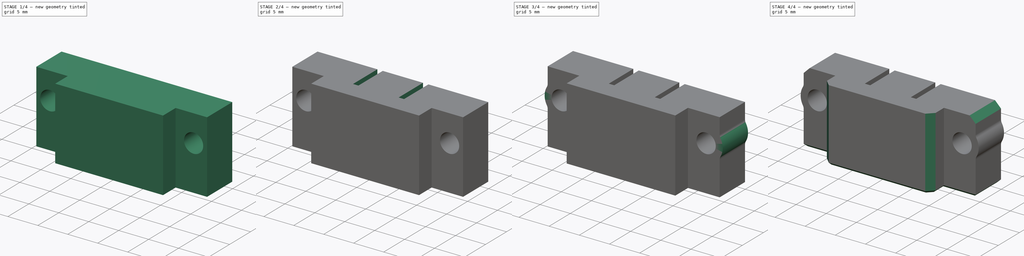
[diagram: build sequence overview — one tinted view per stage of 4, left to right]
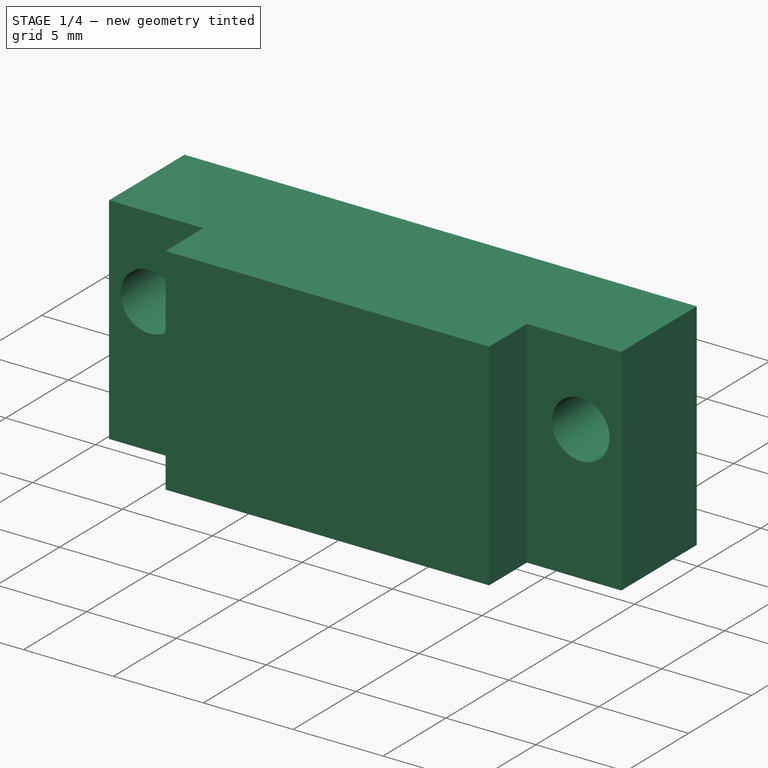
[diagram: stage 1 of 4 — iso view after this stage's code; geometry added in this stage tinted green]
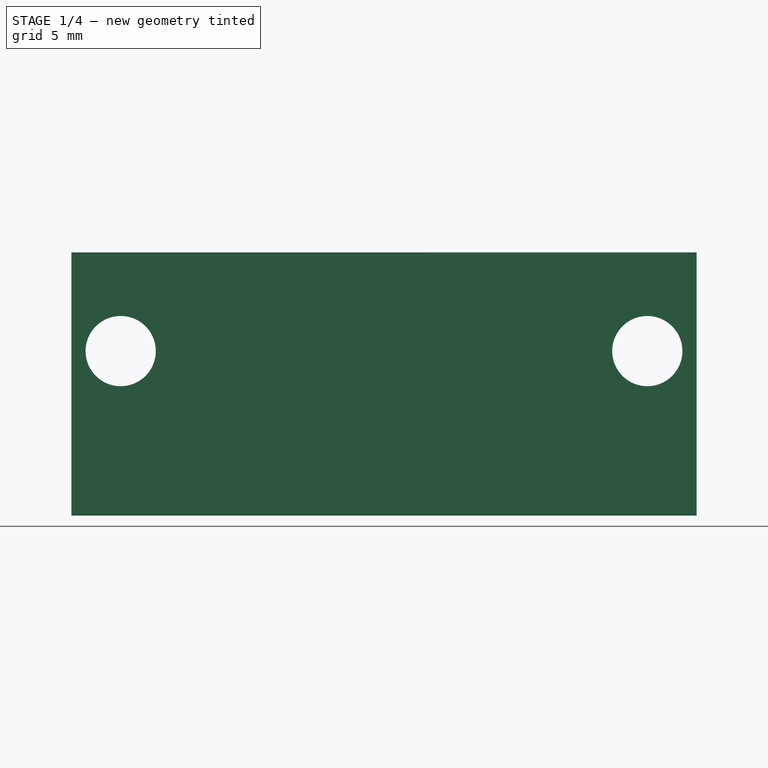
[diagram: stage 1 of 4 — front view after this stage's code; geometry added in this stage tinted green]
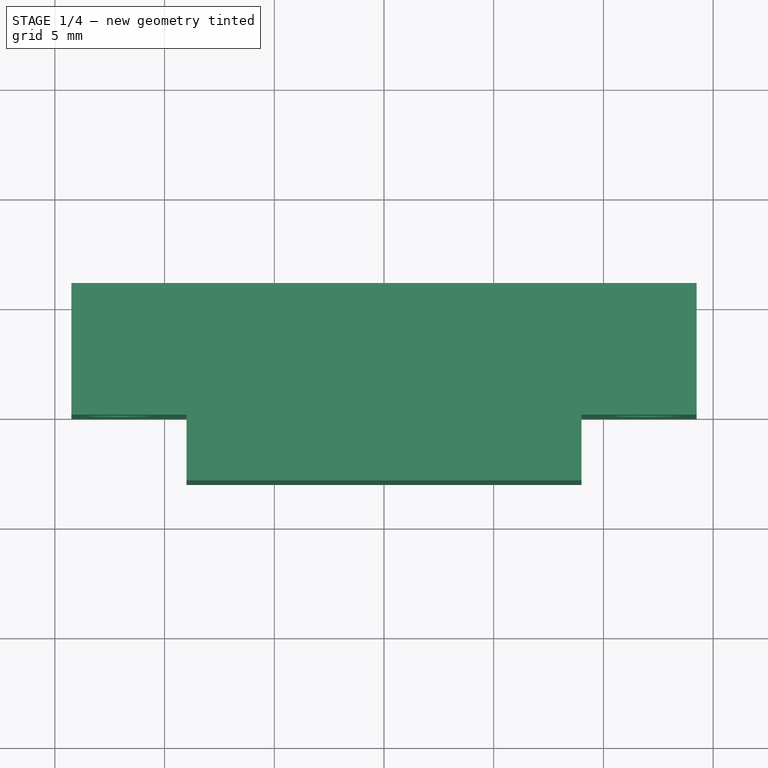
[diagram: stage 1 of 4 — top view after this stage's code; geometry added in this stage tinted green]
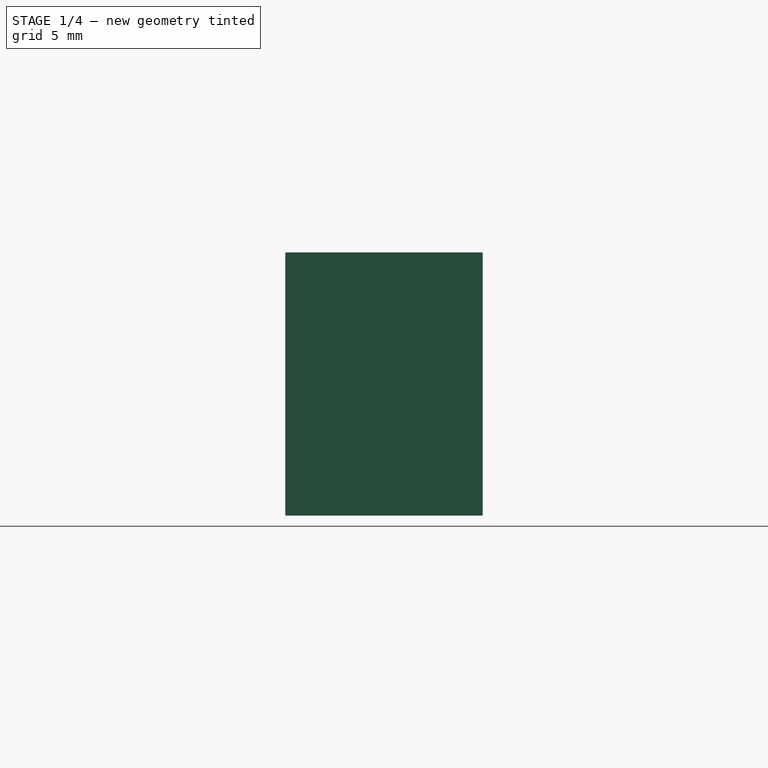
[diagram: stage 1 of 4 — right view after this stage's code; geometry added in this stage tinted green]
FCSTD DOCUMENT  (FreeCAD 2024.113R14555 (Git shallow))
Label: support-sensor
License: All rights reserved
LicenseURL: https://en.wikipedia.org/wiki/All_rights_reserved
objects: Sketcher::SketchObject×5, PartDesign::Pocket×3, PartDesign::Pad×2, PartDesign::Fillet×2, PartDesign::Chamfer×2, PartDesign::Mirrored×1, PartDesign::Body×1
note: 41 computed .brp shape members not serialized (recipe doc carries the construction recipe); baked Part::Feature solids carry a one-line shape summary decoded from their .brp

FEATURE [Sketcher::SketchObject] Sketch
  ArcFitTolerance = 1e-06
  AttachmentSupport = -> [XY_Plane]
  ExternalBSplineMaxDegree = 5
  ExternalBSplineTolerance = 0.0001
  FullyConstrained = true
  InternalTolerance = 1e-06
  InvalidShape = false
  MakeInternals = false
  MapMode = 5
  Support = -> [XY_Plane]
  TreeRank = 11
  ValidateShape = false
  sketch-geometry (8):
    g0: LineSegment StartX=-14.25 StartY=0 StartZ=0 EndX=-9 EndY=0 EndZ=0
    g1: LineSegment StartX=-9 StartY=0 StartZ=0 EndX=-9 EndY=-3 EndZ=0
    g2: LineSegment StartX=-9 StartY=-3 StartZ=0 EndX=9 EndY=-3 EndZ=0
    g3: LineSegment StartX=9 StartY=-3 StartZ=0 EndX=9 EndY=0 EndZ=0
    g4: LineSegment StartX=9 StartY=0 StartZ=0 EndX=14.25 EndY=0 EndZ=0
    g5: LineSegment StartX=14.25 StartY=0 StartZ=0 EndX=14.25 EndY=6 EndZ=0
    g6: LineSegment StartX=14.25 StartY=6 StartZ=0 EndX=-14.25 EndY=6 EndZ=0
    g7: LineSegment StartX=-14.25 StartY=6 StartZ=0 EndX=-14.25 EndY=0 EndZ=0
  constraints (22):
    c: PointOnObject(g0,g-1)
    c: PointOnObject(g0,g-1)
    c: Coincident(g0,g1)
    c: Vertical(g1)
    c: Coincident(g1,g2)
    c: Coincident(g2,g3)
    c: PointOnObject(g3,g-1)
    c: Vertical(g3)
    c: Coincident(g3,g4)
    c: PointOnObject(g4,g-1)
    c: Coincident(g4,g5)
    c: Vertical(g5)
    c: Coincident(g5,g6)
    c: Coincident(g6,g7)
    c: Coincident(g7,g0)
    c: Vertical(g7)
    c: Symmetric(g2,g1,g-2)
    c: Symmetric(g5,g6,g-2)
    c: DistanceY(g3,g3) = 3
    c: DistanceX(g6,g6) = 28.5
    c: DistanceX(g2,g2) = 18
    c: DistanceY(g5,g5) = 6
FEATURE [PartDesign::Pad] Pad
  AddSubType = 0
  AlongSketchNormal = false
  AutoTaperInnerAngle = true
  CheckUpToFaceLimits = true
  ClaimChildren = false
  Direction = (0,0,1)
  Fit = 0
  FitJoin = 0
  InnerFit = 0
  InnerFitJoin = 0
  InvalidShape = false
  Length = 12
  Length2 = 10
  Linearize = true
  NewSolid = false
  Profile = -> Sketch
  ReferenceAxis = -> Sketch [N_Axis]
  Refine = true
  Suppress = false
  TaperInnerAngle = 0
  TaperInnerAngleRev = 0
  TreeRank = 12
  Type = 0
  ValidateShape = true
  _ProfileBasedVersion = 1
FEATURE [Sketcher::SketchObject] Sketch001
  ArcFitTolerance = 1e-06
  AttachmentSupport = -> [XZ_Plane]
  ExternalBSplineMaxDegree = 5
  ExternalBSplineTolerance = 0.0001
  FullyConstrained = true
  InternalTolerance = 1e-06
  InvalidShape = false
  MakeInternals = false
  MapMode = 5
  Placement = pos=(0,0,0) rot=(1,0,0;1.5708rad)
  Support = -> [XZ_Plane]
  TreeRank = 13
  ValidateShape = false
  sketch-geometry (2):
    g0: Circle CenterX=-12 CenterY=7.5 CenterZ=0 NormalX=0 NormalY=0 NormalZ=1 AngleXU=0 Radius=1.6
    g1: Circle CenterX=12 CenterY=7.5 CenterZ=0 NormalX=0 NormalY=0 NormalZ=1 AngleXU=0 Radius=1.6
  constraints (5):
    c: Symmetric(g1,g0,g-2)
    c: Equal(g1,g0)
    c: Diameter(g1) = 3.2
    c: DistanceX(g0,g1) = 24
    c: DistanceY(g-1,g1) = 7.5
FEATURE [PartDesign::Pocket] Pocket
  AddSubType = 1
  AlongSketchNormal = false
  AutoTaperInnerAngle = true
  BaseFeature = -> Pad
  CheckUpToFaceLimits = true
  ClaimChildren = false
  Direction = (0,1,-2e-16)
  Fit = 0
  FitJoin = 0
  InnerFit = 0
  InnerFitJoin = 0
  InvalidShape = false
  Length = 5
  Length2 = 10
  Linearize = true
  NewSolid = false
  Profile = -> Sketch001
  ReferenceAxis = -> Sketch001 [N_Axis]
  Refine = true
  Suppress = false
  TaperInnerAngle = 0
  TaperInnerAngleRev = 0
  TreeRank = 14
  Type = 1
  ValidateShape = true
  _ProfileBasedVersion = 1
  _Version = 1
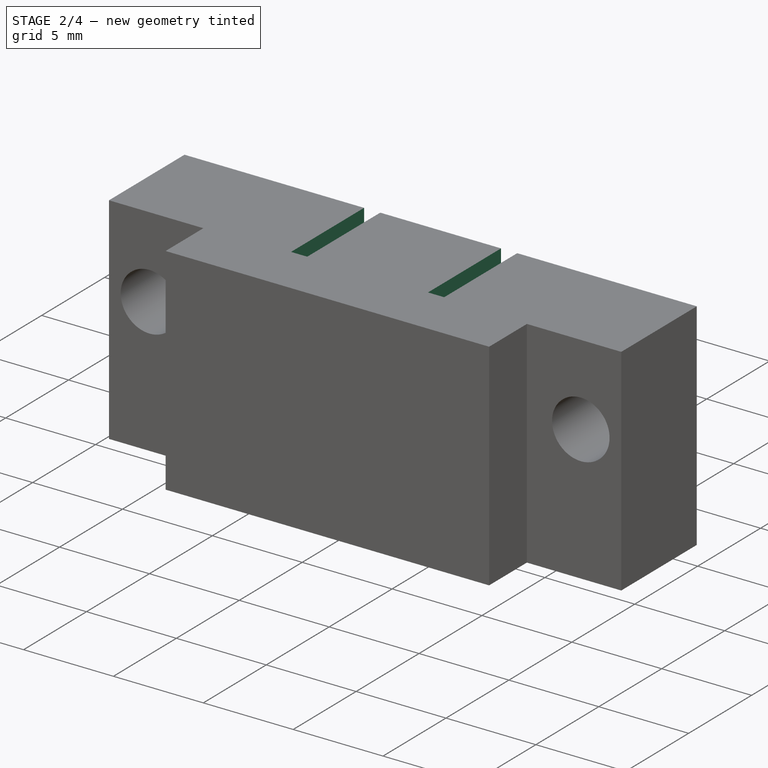
[diagram: stage 2 of 4 — iso view after this stage's code; geometry added in this stage tinted green]
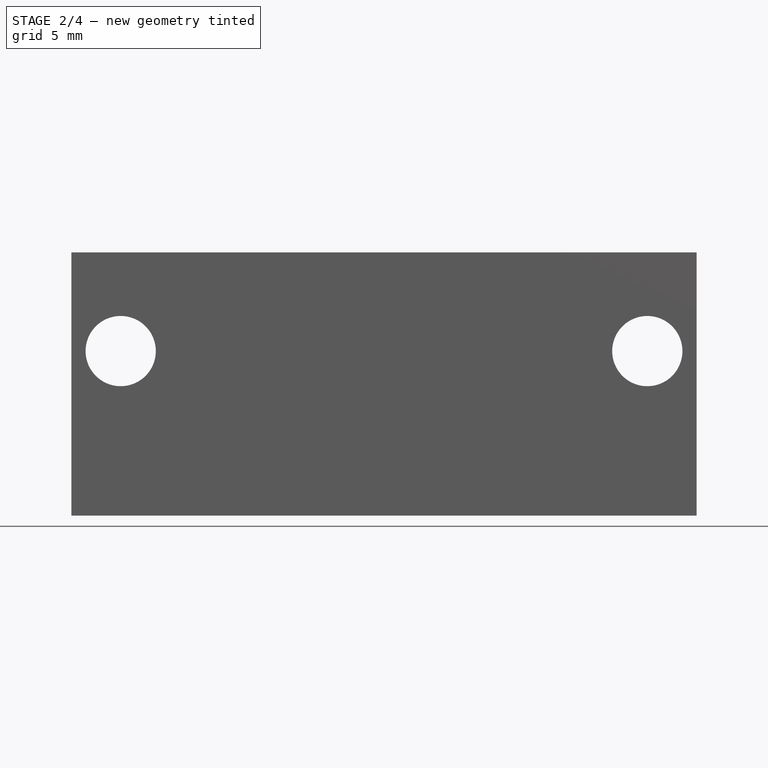
[diagram: stage 2 of 4 — front view after this stage's code; geometry added in this stage tinted green]
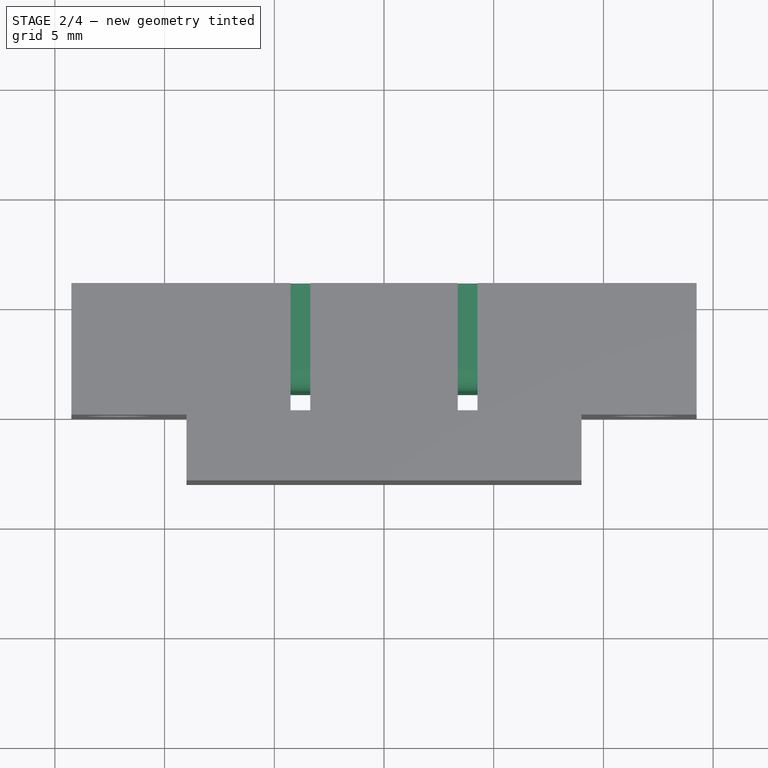
[diagram: stage 2 of 4 — top view after this stage's code; geometry added in this stage tinted green]
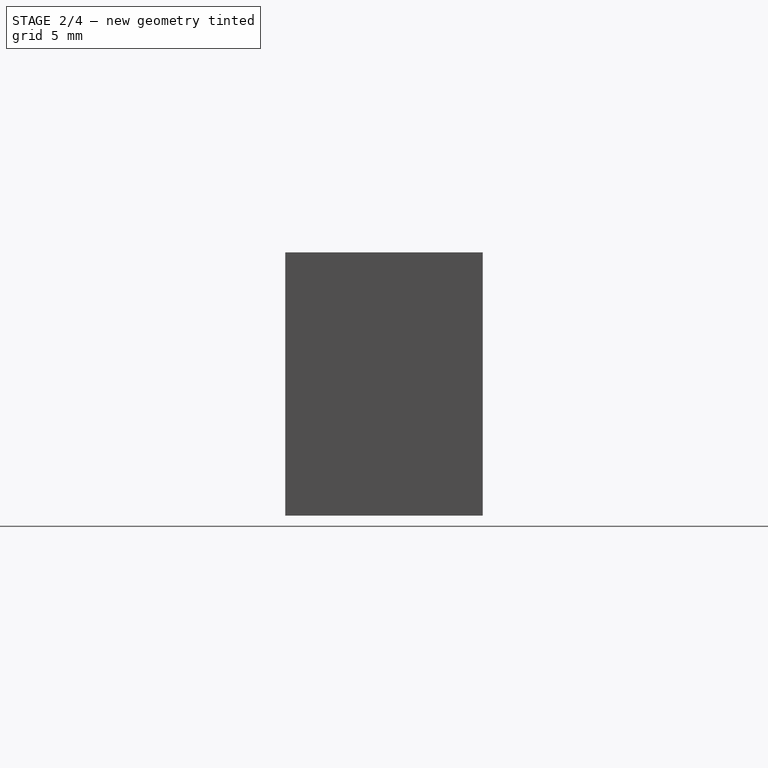
[diagram: stage 2 of 4 — right view after this stage's code; geometry added in this stage tinted green]
FEATURE [Sketcher::SketchObject] Sketch002
  ArcFitTolerance = 1e-06
  AttachmentSupport = -> [XY_Plane]
  ExternalBSplineMaxDegree = 5
  ExternalBSplineTolerance = 0.0001
  FullyConstrained = true
  InternalTolerance = 1e-06
  InvalidShape = false
  MakeInternals = false
  MapMode = 5
  Support = -> [XY_Plane]
  TreeRank = 15
  ValidateShape = false
  sketch-geometry (10):
    g0: LineSegment StartX=-4.26 StartY=1.1 StartZ=0 EndX=-4.26 EndY=0.2 EndZ=0
    g1: LineSegment StartX=-4.26 StartY=0.2 StartZ=0 EndX=-3.36 EndY=0.2 EndZ=0
    g2: LineSegment StartX=-3.36 StartY=0.2 StartZ=0 EndX=-3.36 EndY=1.1 EndZ=0
    g3: LineSegment StartX=-3.36 StartY=1.1 StartZ=0 EndX=-4.26 EndY=1.1 EndZ=0
    g4: GeomPoint [constr] X=-3.81 Y=0.65 Z=0
    g5: LineSegment StartX=3.36 StartY=1.1 StartZ=0 EndX=3.36 EndY=0.2 EndZ=0
    g6: LineSegment StartX=3.36 StartY=0.2 StartZ=0 EndX=4.26 EndY=0.2 EndZ=0
    g7: LineSegment StartX=4.26 StartY=0.2 StartZ=0 EndX=4.26 EndY=1.1 EndZ=0
    g8: LineSegment StartX=4.26 StartY=1.1 StartZ=0 EndX=3.36 EndY=1.1 EndZ=0
    g9: GeomPoint [constr] X=3.81 Y=0.65 Z=0
  constraints (25):
    c: Coincident(g0,g1)
    c: Coincident(g1,g2)
    c: Coincident(g2,g3)
    c: Coincident(g3,g0)
    c: Horizontal(g1)
    c: Horizontal(g3)
    c: Vertical(g0)
    c: Vertical(g2)
    c: Symmetric(g1,g0,g4)
    c: Coincident(g5,g6)
    c: Coincident(g6,g7)
    c: Coincident(g7,g8)
    c: Coincident(g8,g5)
    c: Horizontal(g6)
    c: Horizontal(g8)
    c: Vertical(g5)
    c: Vertical(g7)
    c: Symmetric(g6,g5,g9)
    c: Equal(g5,g2)
    c: Equal(g2,g3)
    c: Equal(g3,g8)
    c: DistanceX(g4,g9) = 7.62
    c: Symmetric(g9,g4,g-2)
    c: DistanceY(g7,g7) = 0.9
    c: DistanceY(g-1,g1) = 0.2
FEATURE [PartDesign::Pocket] Pocket001
  AddSubType = 1
  AlongSketchNormal = false
  AutoTaperInnerAngle = true
  BaseFeature = -> Pocket
  CheckUpToFaceLimits = true
  ClaimChildren = false
  Direction = (0,0,-1)
  Fit = 0
  FitJoin = 0
  InnerFit = 0
  InnerFitJoin = 0
  InvalidShape = false
  Length = 5
  Length2 = 10
  Linearize = true
  NewSolid = false
  Profile = -> Sketch002
  ReferenceAxis = -> Sketch002 [N_Axis]
  Refine = true
  Reversed = true
  Suppress = false
  TaperInnerAngle = 0
  TaperInnerAngleRev = 0
  TreeRank = 16
  Type = 1
  ValidateShape = true
  _ProfileBasedVersion = 1
  _Version = 1
FEATURE [Sketcher::SketchObject] Sketch003
  ArcFitTolerance = 1e-06
  AttachmentSupport = -> [Pocket001]
  ExternalBSplineMaxDegree = 5
  ExternalBSplineTolerance = 0.0001
  ExternalGeometry = -> [Pocket001]
  FullyConstrained = true
  InternalTolerance = 1e-06
  InvalidShape = false
  MakeInternals = false
  MapMode = 5
  Placement = pos=(0,1.1,0) rot=(1,0,0;1.5708rad)
  Support = -> [Pocket001]
  TreeRank = 17
  ValidateShape = false
  sketch-geometry (8):
    g0: LineSegment StartX=3.36 StartY=12 StartZ=0 EndX=4.26 EndY=12 EndZ=0
    g1: LineSegment StartX=4.26 StartY=12 StartZ=0 EndX=4.26 EndY=10.5 EndZ=0
    g2: LineSegment StartX=4.26 StartY=10.5 StartZ=0 EndX=3.36 EndY=10.5 EndZ=0
    g3: LineSegment StartX=3.36 StartY=10.5 StartZ=0 EndX=3.36 EndY=12 EndZ=0
    g4: LineSegment StartX=-4.26 StartY=12 StartZ=0 EndX=-3.36 EndY=12 EndZ=0
    g5: LineSegment StartX=-3.36 StartY=12 StartZ=0 EndX=-3.36 EndY=10.5 EndZ=0
    g6: LineSegment StartX=-3.36 StartY=10.5 StartZ=0 EndX=-4.26 EndY=10.5 EndZ=0
    g7: LineSegment StartX=-4.26 StartY=10.5 StartZ=0 EndX=-4.26 EndY=12 EndZ=0
  constraints (21):
    c: Coincident(g0,g1)
    c: Coincident(g1,g2)
    c: Coincident(g2,g3)
    c: Coincident(g3,g0)
    c: Horizontal(g0)
    c: Horizontal(g2)
    c: Vertical(g1)
    c: Vertical(g3)
    c: Coincident(g0,g-3)
    c: PointOnObject(g1,g-4)
    c: Coincident(g4,g5)
    c: Coincident(g5,g6)
    c: Coincident(g6,g7)
    c: Coincident(g7,g4)
    c: Horizontal(g4)
    c: Horizontal(g6)
    c: Vertical(g5)
    c: Vertical(g7)
    c: Coincident(g4,g-6)
    c: Symmetric(g5,g2,g-2)
    c: DistanceY(g1,g1) = 1.5
FEATURE [PartDesign::Pocket] Pocket002
  AddSubType = 1
  AlongSketchNormal = false
  AutoTaperInnerAngle = true
  BaseFeature = -> Pocket001
  CheckUpToFaceLimits = true
  ClaimChildren = false
  Direction = (0,1,-2e-16)
  Fit = 0
  FitJoin = 0
  InnerFit = 0
  InnerFitJoin = 0
  InvalidShape = false
  Length = 5
  Length2 = 10
  Linearize = true
  NewSolid = false
  Profile = -> Sketch003
  ReferenceAxis = -> Sketch003 [N_Axis]
  Refine = true
  Suppress = false
  TaperInnerAngle = 0
  TaperInnerAngleRev = 0
  TreeRank = 18
  Type = 1
  ValidateShape = true
  _ProfileBasedVersion = 1
  _Version = 1
FEATURE [PartDesign::Fillet] Fillet
  AddSubType = 0
  Base = -> Pocket002 [Edge55,Edge60]
  BaseFeature = -> Pocket002
  InvalidShape = false
  NewSolid = false
  Radius = 1
  Refine = true
  SupportTransform = false
  Suppress = false
  TreeRank = 19
  UseAllEdges = false
  ValidateShape = true
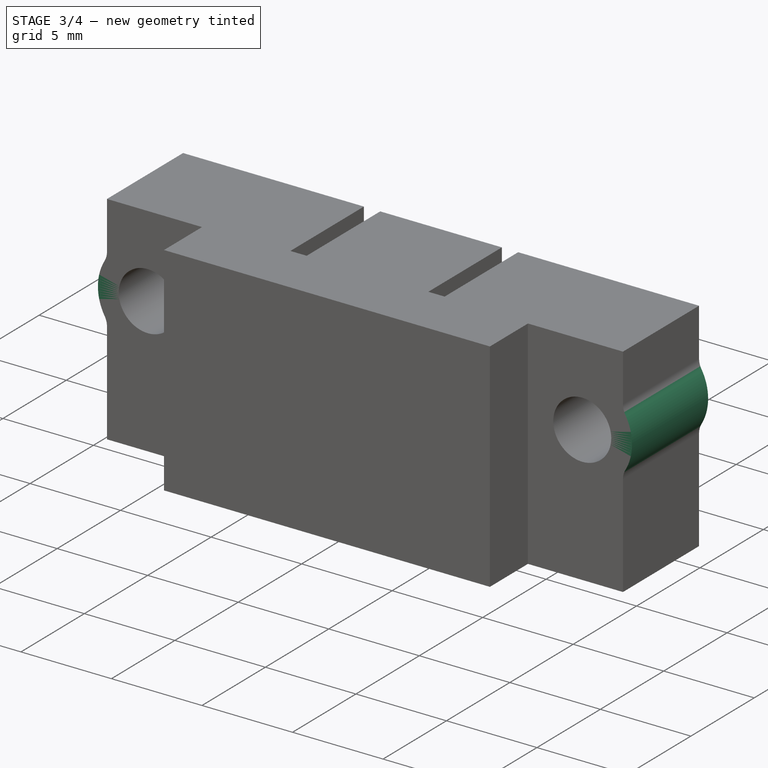
[diagram: stage 3 of 4 — iso view after this stage's code; geometry added in this stage tinted green]
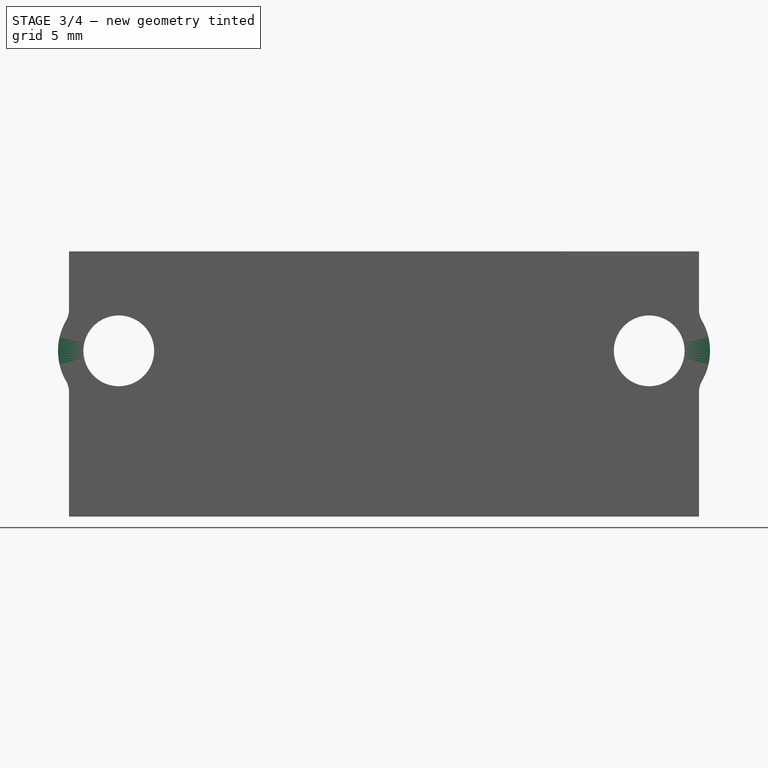
[diagram: stage 3 of 4 — front view after this stage's code; geometry added in this stage tinted green]
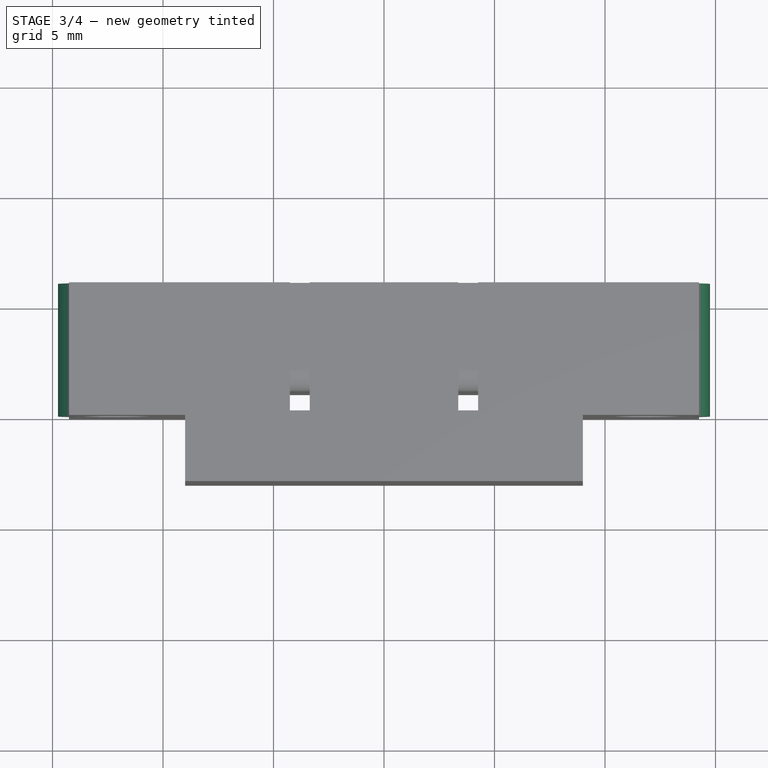
[diagram: stage 3 of 4 — top view after this stage's code; geometry added in this stage tinted green]
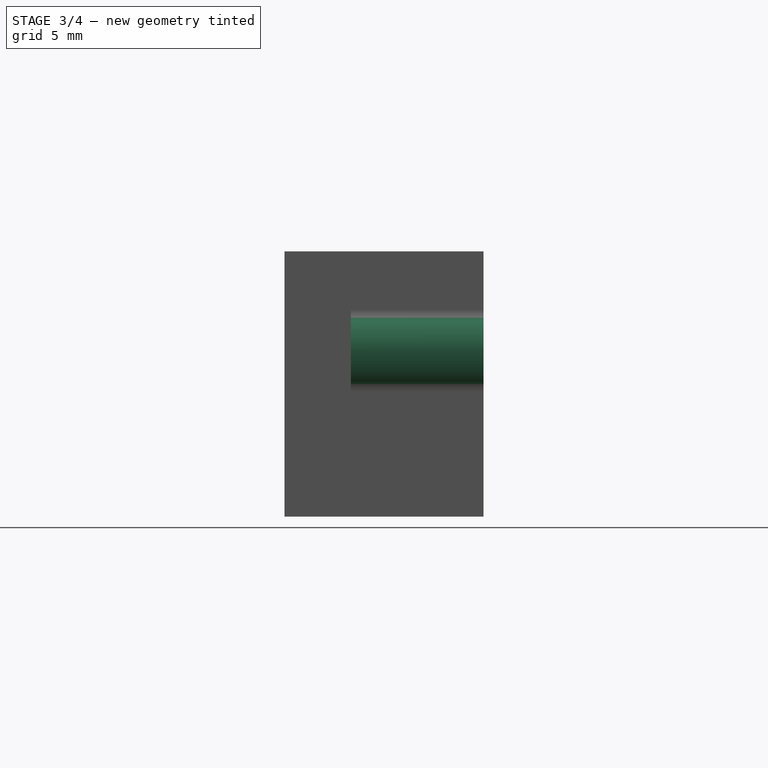
[diagram: stage 3 of 4 — right view after this stage's code; geometry added in this stage tinted green]
FEATURE [Sketcher::SketchObject] Sketch004
  ArcFitTolerance = 1e-06
  AttachmentSupport = -> [XZ_Plane]
  ExternalBSplineMaxDegree = 5
  ExternalBSplineTolerance = 0.0001
  ExternalGeometry = -> [Fillet]
  FullyConstrained = true
  InternalTolerance = 1e-06
  InvalidShape = false
  MakeInternals = false
  MapMode = 5
  Placement = pos=(0,0,0) rot=(1,0,0;1.5708rad)
  Support = -> [XZ_Plane]
  TreeRank = 20
  ValidateShape = false
  sketch-geometry (3):
    g0: ArcOfCircle CenterX=12 CenterY=7.5 CenterZ=0 NormalX=0 NormalY=0 NormalZ=1 AngleXU=0 Radius=2.75 StartAngle=5.67063 EndAngle=6.89574
    g1: LineSegment [constr] StartX=12 StartY=7.5 StartZ=0 EndX=14.75 EndY=7.5 EndZ=0
    g2: LineSegment StartX=14.25 StartY=9.08114 StartZ=0 EndX=14.25 EndY=5.91886 EndZ=0
  constraints (9):
    c: Coincident(g0,g-3)
    c: PointOnObject(g0,g-4)
    c: PointOnObject(g0,g-4)
    c: Coincident(g1,g0)
    c: PointOnObject(g1,g0)
    c: Horizontal(g1)
    c: DistanceX(g0,g1) = 0.5
    c: Coincident(g2,g0)
    c: Coincident(g2,g0)
FEATURE [PartDesign::Pad] Pad001
  AddSubType = 0
  AlongSketchNormal = false
  AutoTaperInnerAngle = true
  BaseFeature = -> Fillet
  CheckUpToFaceLimits = true
  ClaimChildren = false
  Direction = (0,-1,2e-16)
  Fit = 0
  FitJoin = 0
  InnerFit = 0
  InnerFitJoin = 0
  InvalidShape = false
  Length = 5
  Length2 = 10
  Linearize = true
  NewSolid = false
  Profile = -> Sketch004
  ReferenceAxis = -> Sketch004 [N_Axis]
  Refine = true
  Reversed = true
  Suppress = false
  TaperInnerAngle = 0
  TaperInnerAngleRev = 0
  TreeRank = 21
  Type = 3
  UpToFace = -> Fillet [Face8]
  ValidateShape = true
  _ProfileBasedVersion = 1
FEATURE [PartDesign::Mirrored] Mirrored
  AddSubType = 0
  BaseFeature = -> Pad001
  CopyShape = false
  InvalidShape = false
  MirrorPlane = -> Sketch004 [V_Axis]
  NewSolid = false
  OriginalSubs = -> [Pad001]
  Originals = -> [Pad001]
  ParallelTransform = true
  Refine = true
  SubTransform = true
  Suppress = false
  TreeRank = 22
  ValidateShape = true
  _Version = 3
FEATURE [PartDesign::Fillet] Fillet001
  AddSubType = 0
  Base = -> Mirrored [Edge75,Edge53,Edge70,Edge47]
  BaseFeature = -> Mirrored
  InvalidShape = false
  NewSolid = false
  Radius = 1
  Refine = true
  SupportTransform = false
  Suppress = false
  TreeRank = 23
  UseAllEdges = false
  ValidateShape = true
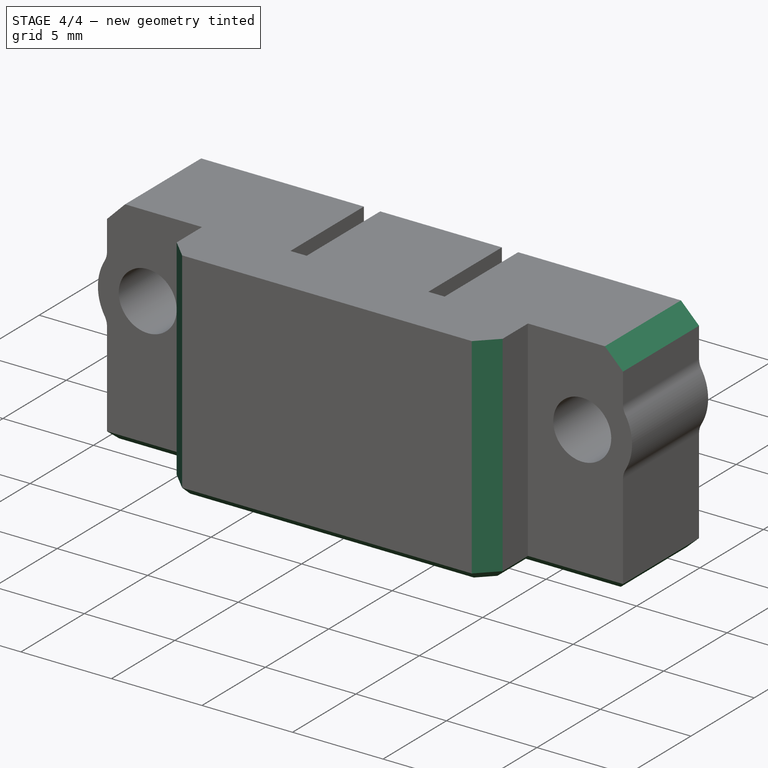
[diagram: stage 4 of 4 — iso view after this stage's code; geometry added in this stage tinted green]
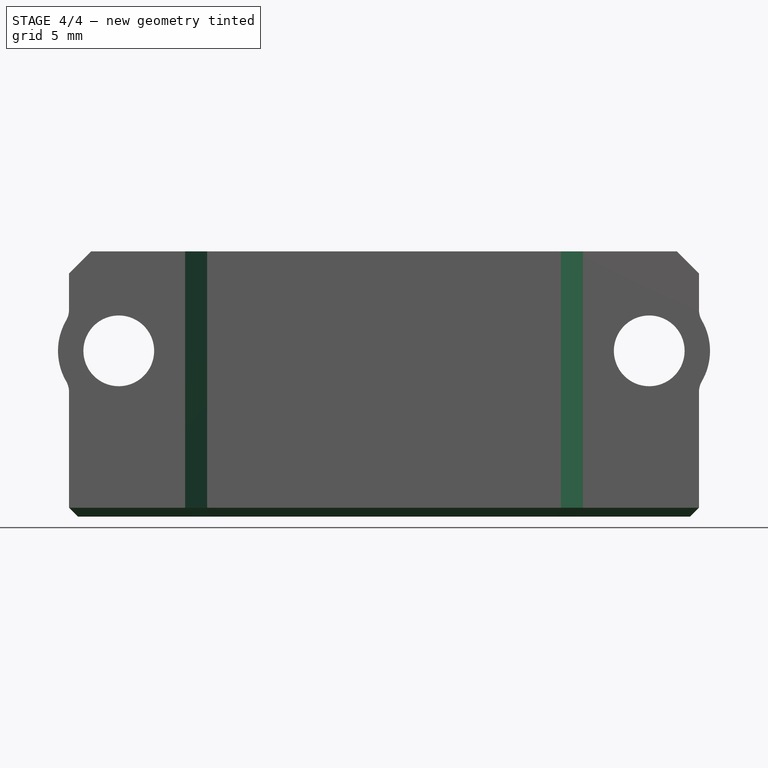
[diagram: stage 4 of 4 — front view after this stage's code; geometry added in this stage tinted green]
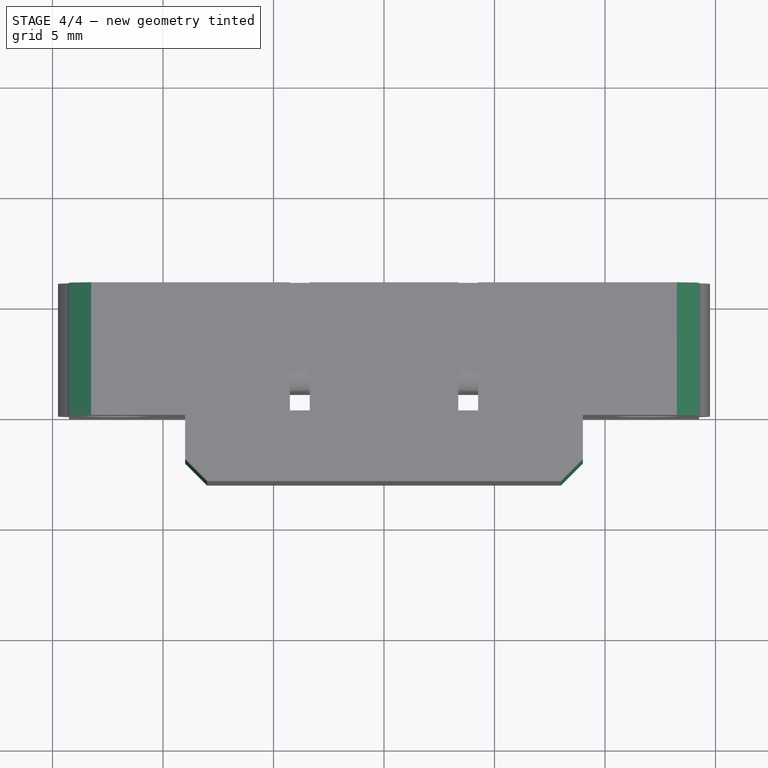
[diagram: stage 4 of 4 — top view after this stage's code; geometry added in this stage tinted green]
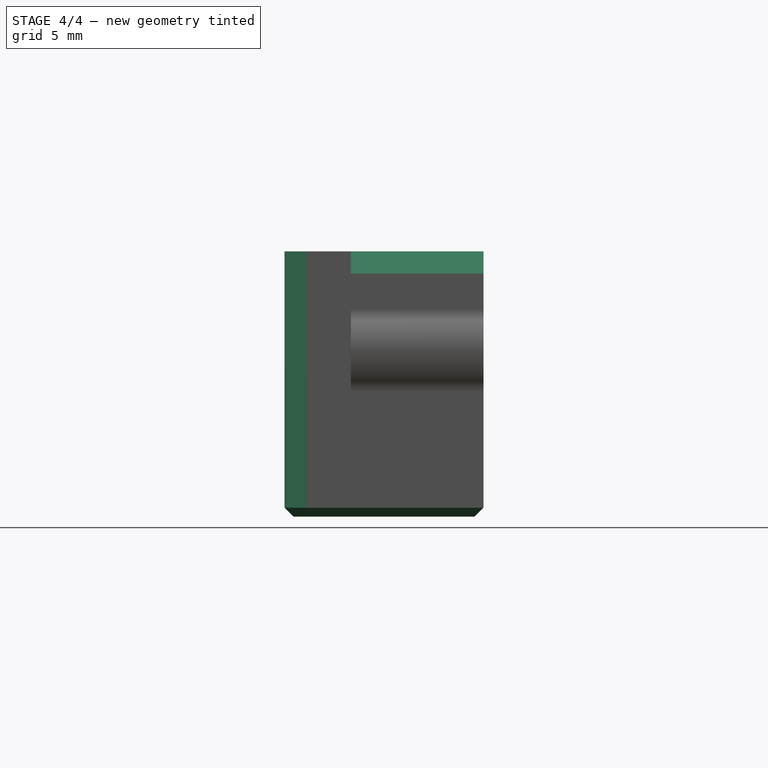
[diagram: stage 4 of 4 — right view after this stage's code; geometry added in this stage tinted green]
FEATURE [PartDesign::Chamfer] Chamfer
  AddSubType = 0
  Angle = 45
  Base = -> Fillet001 [Edge59,Edge52,Edge64,Edge49]
  BaseFeature = -> Fillet001
  ChamferType = 0
  FlipDirection = false
  InvalidShape = false
  NewSolid = false
  Refine = true
  Size = 1
  Size2 = 1
  SupportTransform = false
  Suppress = false
  TreeRank = 24
  UseAllEdges = false
  ValidateShape = true
FEATURE [PartDesign::Chamfer] Chamfer001
  AddSubType = 0
  Angle = 45
  Base = -> Chamfer [Face6]
  BaseFeature = -> Chamfer
  ChamferType = 0
  FlipDirection = false
  InvalidShape = false
  NewSolid = false
  Refine = true
  Size = 0.4
  Size2 = 1
  SupportTransform = false
  Suppress = false
  TreeRank = 25
  UseAllEdges = false
  ValidateShape = true
FEATURE [PartDesign::Body] Body  label="SupportSensorPAMI"
  AutoGroupSolids = false
  ClaimAllChildren = false
  ExportMode = 0
  Group = -> [Sketch,Pad,Sketch001,Pocket,Sketch002,Pocket001,Sketch003,Pocket002,Fillet,Sketch004,Pad001,Mirrored,Fillet001,Chamfer,Chamfer001]
  InvalidShape = false
  Origin = -> Origin
  Tip = -> Chamfer001
  TreeRank = 10
  ValidateShape = false
  _ExportChildren = -> [Pad,Pocket,Pocket001,Pocket002,Fillet,Pad001,Mirrored,Fillet001,Chamfer,Chamfer001]
  _GroupVersion = 1
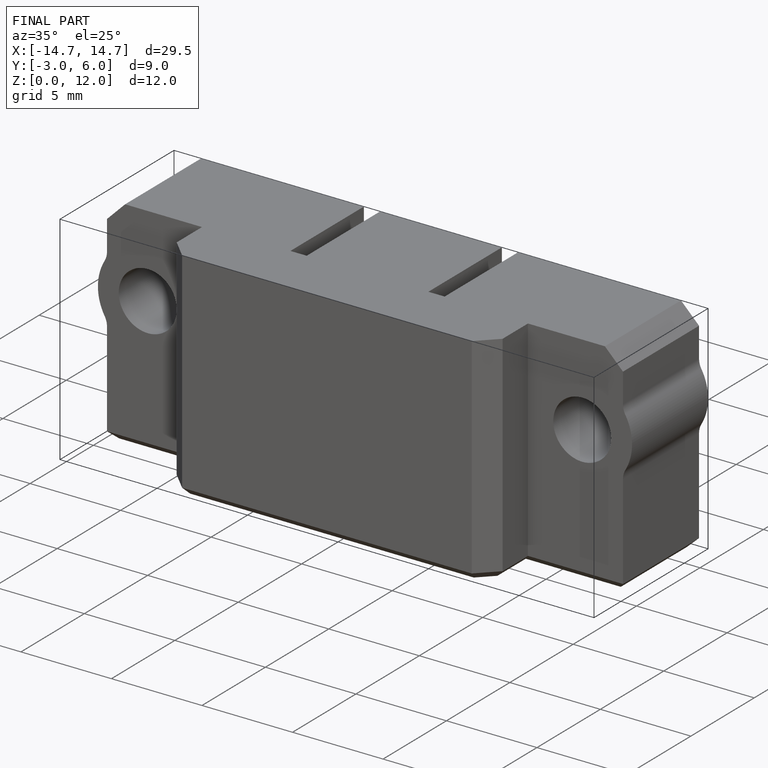
[diagram: finished part — iso view with bounding-box wireframe]
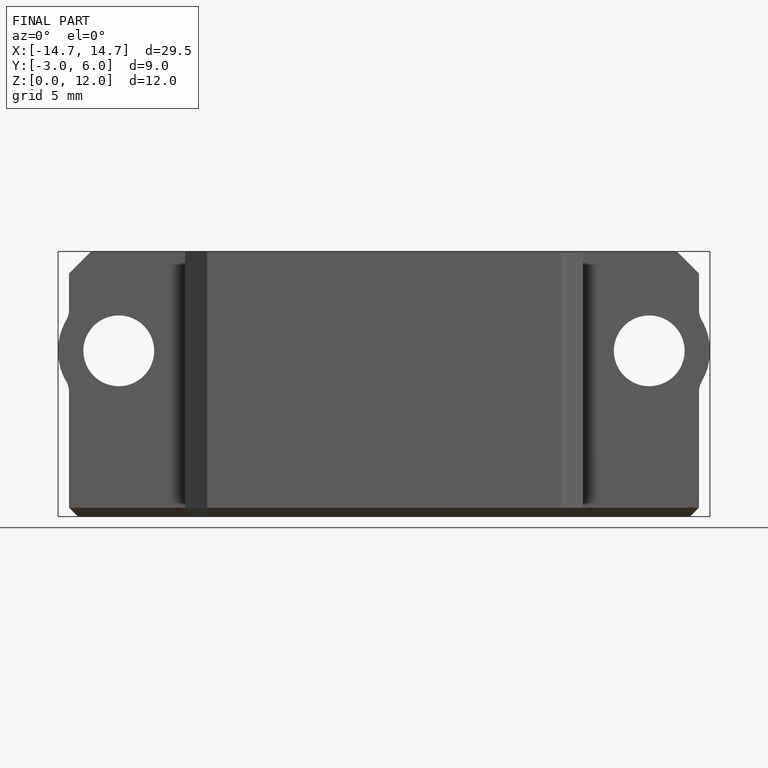
[diagram: finished part — front view with bounding-box wireframe]
